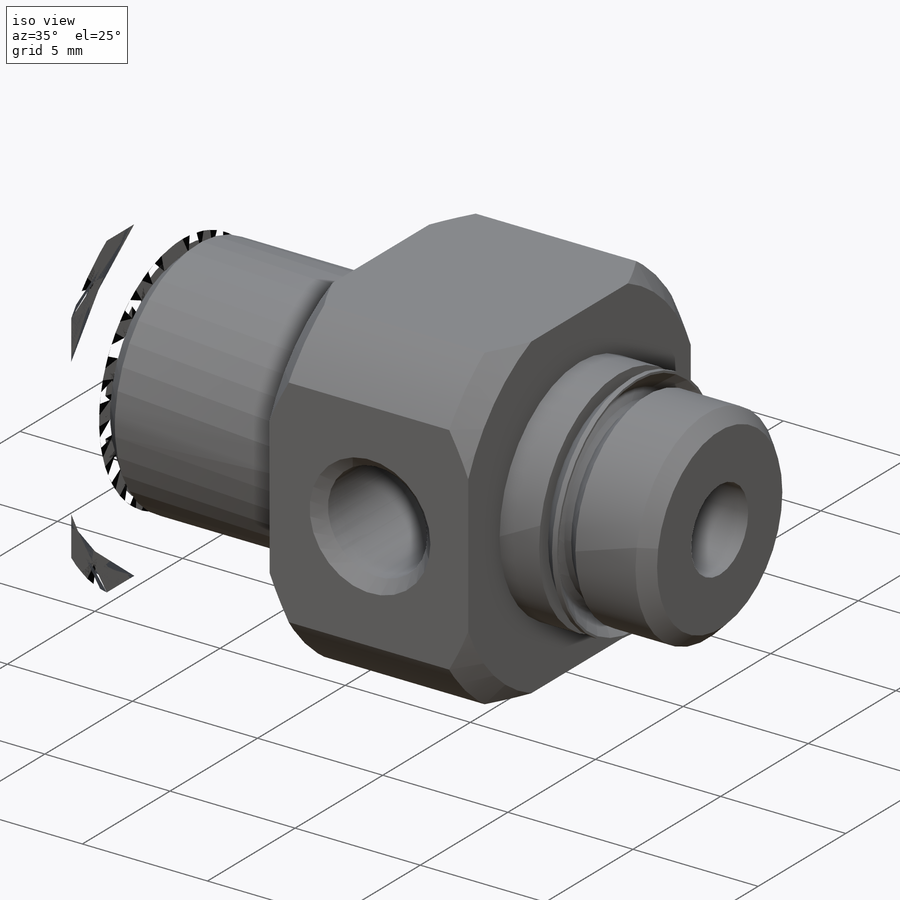
[diagram: iso view]
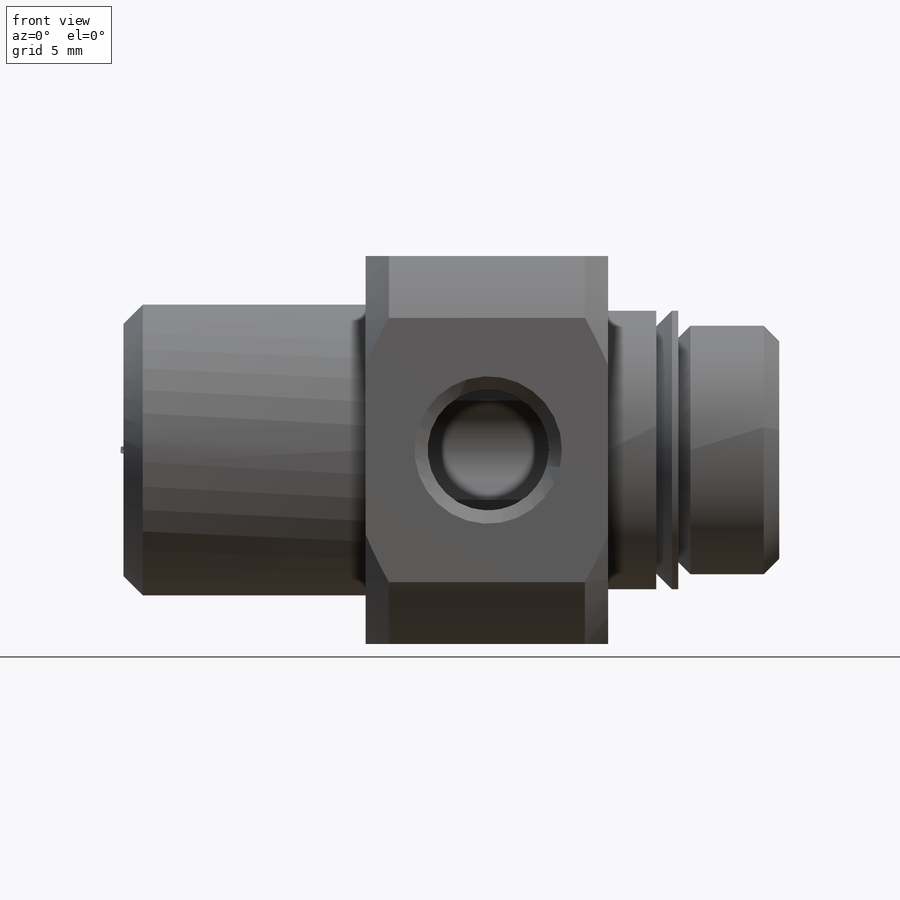
[diagram: front view]
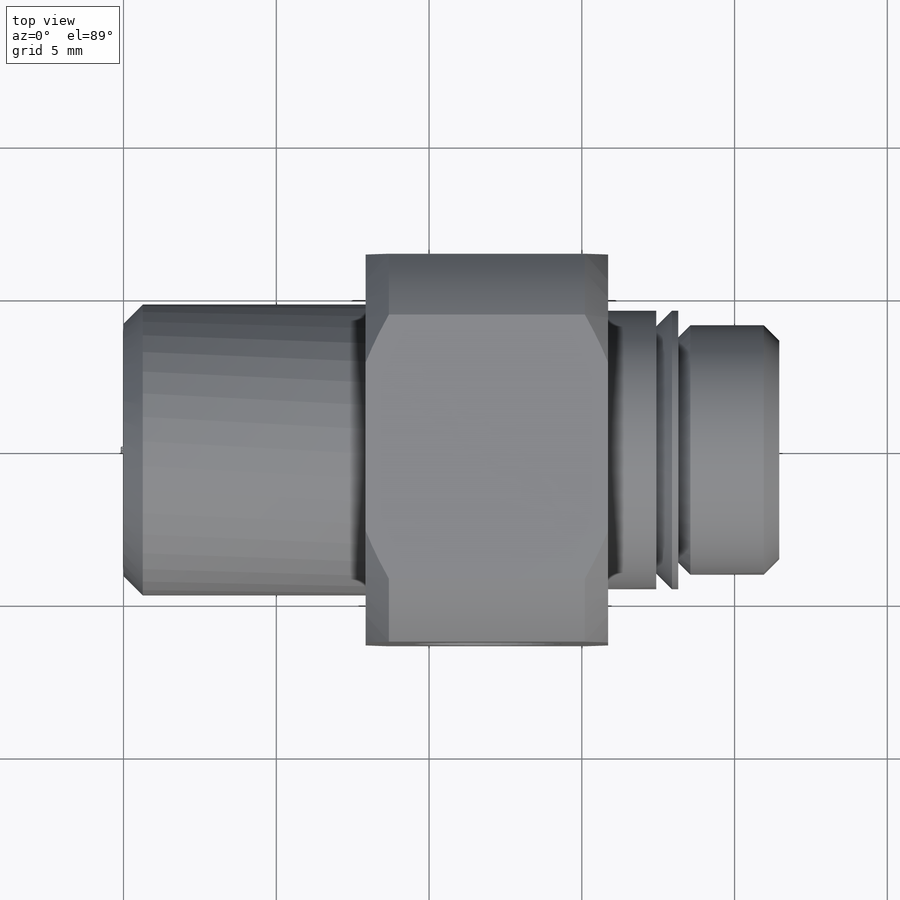
[diagram: top view]
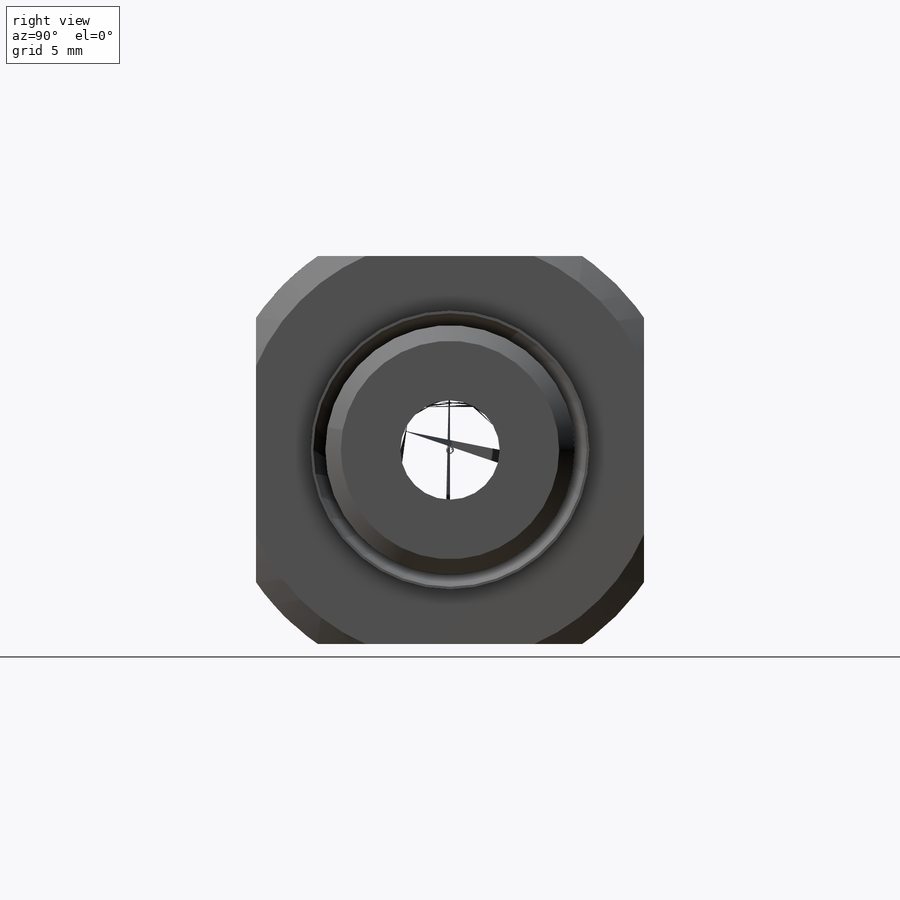
[diagram: right view]
SOLIDWORKS PART (.sldprt)
format: sldprt  version: not decoded by parser v0  size: 522,240 bytes
history: native  units: mm
features: plane x60, sketch x23, revolve x4, thread x2, hole x2, material x1, cut_extrude x1, extrude x1 (+55 scaffold rows collapsed)
feature tree (149):
  scaffold x55  (default folders/planes/origin — collapsed)
  material  "Cast Alloy Steel"
  sketch  "Sketch1"
  revolve  "Revolve1"  [1 undecoded]
  thread  "Cosmetic Thread1"  Diameter=7.9248mm  [1 undecoded]
  sketch  "Sketch2"
  revolve  "Revolve2"  Angle=360deg
  sketch  "Sketch3"
  revolve  "Revolve3"  Angle=360deg
  hole  "Hole1"  Diameter=3.2512mm Depth=21.463mm
  sketch  "Sketch5"
  sketch  "Sketch4"  dims[Diameter=3.2512mm Depth=21.463mm C-Sink Angle=90.0deg C-Sink Diameter=4.0132mm]
  sketch  "Sketch6"
  cut_extrude  "Cut-Extrude1"  Depth=21.463mm
  hole  "Hole2"  Diameter=3.96748mm Depth=6.35mm
  sketch  "Sketch8"
  sketch  "Sketch7"  dims[Diameter=~3.96748mm Depth=6.35mm C-Sink Angle=90.0deg C-Sink Diameter=4.826mm]
  thread  "Cosmetic Thread2"  Diameter=4.4069mm  [1 undecoded]
  plane  "Plane1"  Offset=15.0876mm
  plane  "Plane2"  Offset=0mm
  plane  "Plane3"
  plane  "Plane4"  Offset=0mm
  plane  "Plane5"  Offset=15.8623mm
  plane  "Plane6"  Offset=7.9248mm
  plane  "Plane7"  Offset=15.8623mm
  sketch  "Sketch9"
  revolve  "Revolve4"  Angle=360deg
  plane  "Plane8"  Offset=17.9959mm
  plane  "Plane9"  Offset=7.9248mm
  plane  "Plane10"  Offset=7.9248mm
  plane  "Plane11"  Offset=6.35mm
  plane  "Plane12"  Offset=12.7mm
  plane  "Plane13"  Offset=0mm
  plane  "Plane14"  Offset=0mm
  plane  "Plane15"
  plane  "Plane16"
  plane  "Plane17"  Offset=0mm
  plane  "Plane18"  Offset=0mm
  extrude  "Folder1___EndTag___"  [1 undecoded]
  plane  "port XY"
  plane  "port XZ"
  plane  "port YZ"
  sketch  "port"
  plane  "rod_guide XY"
  plane  "rod_guide XZ"
  plane  "rod_guide YZ"
  sketch  "rod_guide"
  plane  "sq1 XY"
  plane  "sq1 XZ"
  plane  "sq1 YZ"
  sketch  "sq1"
  plane  "sq2 XY"
  plane  "sq2 XZ"
  plane  "sq2 YZ"
  sketch  "sq2"
  plane  "t1 XY"
  plane  "t1 XZ"
  plane  "t1 YZ"
  sketch  "t1"
  plane  "t111 XY"
  plane  "t111 XZ"
  plane  "t111 YZ"
  sketch  "t111"
  plane  "to_foot_bracket XY"
  plane  "to_foot_bracket XZ"
  plane  "to_foot_bracket YZ"
  sketch  "to_foot_bracket"
  plane  "to_nut XY"
  plane  "to_nut XZ"
  plane  "to_nut YZ"
  sketch  "to_nut"
  plane  "to_rod XY"
  plane  "to_rod XZ"
  plane  "to_rod YZ"
  sketch  "to_rod"
  plane  "to_screw XY"
  plane  "to_screw XZ"
  plane  "to_screw YZ"
  sketch  "to_screw"
  plane  "to_trunnion_brackets XY"
  plane  "to_trunnion_brackets XZ"
  plane  "to_trunnion_brackets YZ"
  sketch  "to_trunnion_brackets"
  plane  "to_trunnion_brackets1 XY"
  plane  "to_trunnion_brackets1 XZ"
  plane  "to_trunnion_brackets1 YZ"
  sketch  "to_trunnion_brackets1"
  plane  "to_trunnion_brackets2 XY"
  plane  "to_trunnion_brackets2 XZ"
  plane  "to_trunnion_brackets2 YZ"
  sketch  "to_trunnion_brackets2"
  plane  "to_tube XY"
  plane  "to_tube XZ"
  plane  "to_tube YZ"
  sketch  "to_tube"
decode coverage: 10 of 33 modeling features carry decoded parameters
note: ~ marks probable driven/reference dimensions
note: 4 parameter values undecoded
note: suppression state not decoded; provenance and decode notes live in map.json
